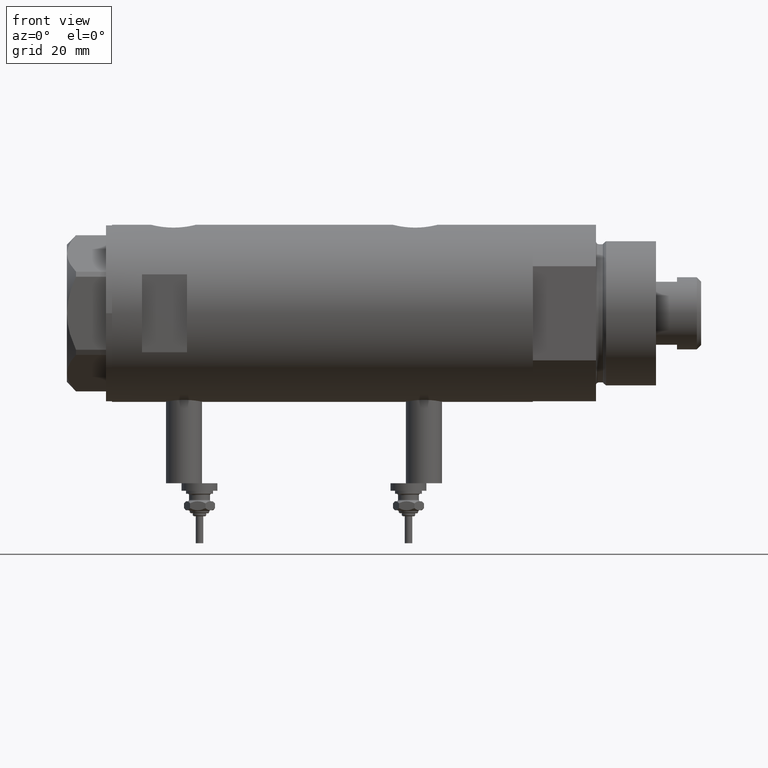
[diagram: clean part render]
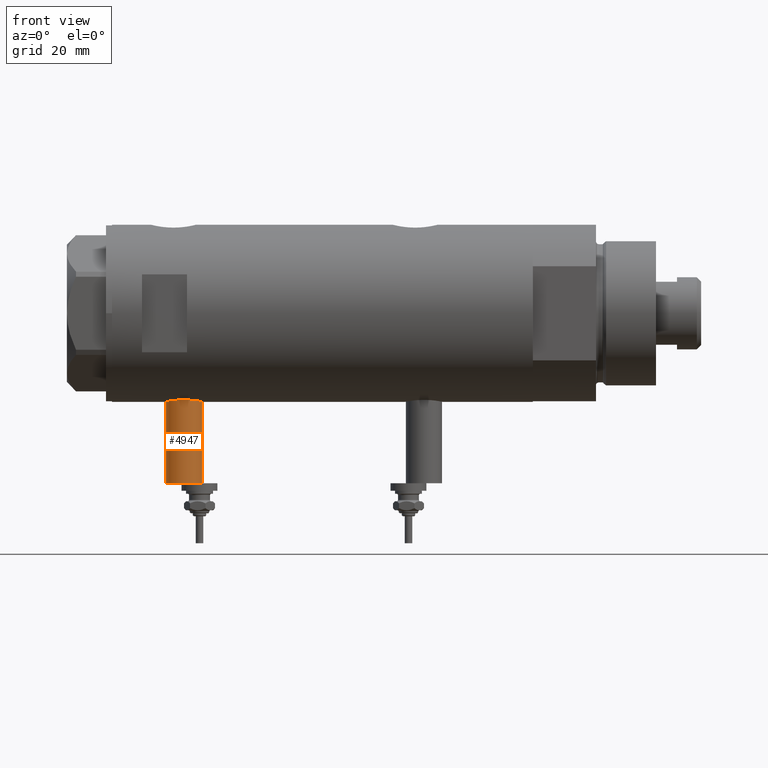
[diagram: same view with one face highlighted and labeled with its STEP entity id]
A machine part, front view. The second image highlights one B-rep face of the part: STEP entity #4947.
In plain terms, the highlighted cylindrical surface (edge-blend (fillet) strip) has radius 6 mm, axis along (0, 0, 1).
Its self-contained STEP definition (entity closure, byte-faithful):
#6 = CARTESIAN_POINT ( 'NONE',  ( -56.60000000000000142, 0.000000000000000000, 40.09999999999999432 ) ) ;
#282 = AXIS2_PLACEMENT_3D ( 'NONE', #5196, #2831, #5079 ) ;
#326 = CARTESIAN_POINT ( 'NONE',  ( -56.60000000000000142, 7.347880794884108889E-16, 52.09999999999999432 ) ) ;
#370 = AXIS2_PLACEMENT_3D ( 'NONE', #5809, #5847, #1193 ) ;
#394 = CARTESIAN_POINT ( 'NONE',  ( -56.60000000000000142, 0.000000000000000000, 46.09999999999999432 ) ) ;
#1193 = DIRECTION ( 'NONE',  ( 0.000000000000000000, 0.000000000000000000, 1.000000000000000000 ) ) ;
#1383 = DIRECTION ( 'NONE',  ( 1.000000000000000000, -0.000000000000000000, -0.000000000000000000 ) ) ;
#1480 = EDGE_LOOP ( 'NONE', ( #5616, #3154, #4311, #5806 ) ) ;
#1571 = CARTESIAN_POINT ( 'NONE',  ( -28.30000000000000071, 0.000000000000000000, 40.09999999999999432 ) ) ;
#1619 = EDGE_CURVE ( 'NONE', #5115, #2745, #5438, .T. ) ;
#2053 = CARTESIAN_POINT ( 'NONE',  ( -56.60000000000000142, 0.000000000000000000, 40.09999999999999432 ) ) ;
#2571 = EDGE_CURVE ( 'NONE', #2810, #5171, #5088, .T. ) ;
#2682 = CYLINDRICAL_SURFACE ( 'NONE', #3118, 5.999999999999998224 ) ;
#2745 = VERTEX_POINT ( 'NONE', #5223 ) ;
#2808 = LINE ( 'NONE', #3278, #5208 ) ;
#2810 = VERTEX_POINT ( 'NONE', #2053 ) ;
#2831 = DIRECTION ( 'NONE',  ( -1.000000000000000000, 0.000000000000000000, 0.000000000000000000 ) ) ;
#2832 = DIRECTION ( 'NONE',  ( 1.000000000000000000, -0.000000000000000000, -0.000000000000000000 ) ) ;
#3118 = AXIS2_PLACEMENT_3D ( 'NONE', #394, #1383, #3214 ) ;
#3154 = ORIENTED_EDGE ( 'NONE', *, *, #2571, .F. ) ;
#3214 = DIRECTION ( 'NONE',  ( 0.000000000000000000, 0.000000000000000000, -1.000000000000000000 ) ) ;
#3278 = CARTESIAN_POINT ( 'NONE',  ( -56.60000000000000142, 7.347880794884112834E-16, 52.09999999999999432 ) ) ;
#3658 = DIRECTION ( 'NONE',  ( 1.000000000000000000, -0.000000000000000000, -0.000000000000000000 ) ) ;
#4199 = EDGE_CURVE ( 'NONE', #5171, #2745, #2808, .T. ) ;
#4206 = EDGE_CURVE ( 'NONE', #2810, #5115, #5905, .T. ) ;
#4311 = ORIENTED_EDGE ( 'NONE', *, *, #4206, .T. ) ;
#4947 = ADVANCED_FACE ( 'NONE', ( #4959 ), #2682, .T. ) ;
#4959 = FACE_OUTER_BOUND ( 'NONE', #1480, .T. ) ;
#5079 = DIRECTION ( 'NONE',  ( 0.000000000000000000, 0.000000000000000000, 1.000000000000000000 ) ) ;
#5088 = CIRCLE ( 'NONE', #282, 5.999999999999998224 ) ;
#5115 = VERTEX_POINT ( 'NONE', #1571 ) ;
#5171 = VERTEX_POINT ( 'NONE', #326 ) ;
#5196 = CARTESIAN_POINT ( 'NONE',  ( -56.60000000000000142, 0.000000000000000000, 46.09999999999999432 ) ) ;
#5208 = VECTOR ( 'NONE', #2832, 1000.000000000000000 ) ;
#5223 = CARTESIAN_POINT ( 'NONE',  ( -28.30000000000000071, 7.347880794884108889E-16, 52.09999999999999432 ) ) ;
#5438 = CIRCLE ( 'NONE', #370, 5.999999999999998224 ) ;
#5616 = ORIENTED_EDGE ( 'NONE', *, *, #4199, .F. ) ;
#5806 = ORIENTED_EDGE ( 'NONE', *, *, #1619, .T. ) ;
#5809 = CARTESIAN_POINT ( 'NONE',  ( -28.30000000000000071, 0.000000000000000000, 46.09999999999999432 ) ) ;
#5847 = DIRECTION ( 'NONE',  ( -1.000000000000000000, 0.000000000000000000, 0.000000000000000000 ) ) ;
#5864 = VECTOR ( 'NONE', #3658, 1000.000000000000000 ) ;
#5905 = LINE ( 'NONE', #6, #5864 ) ;